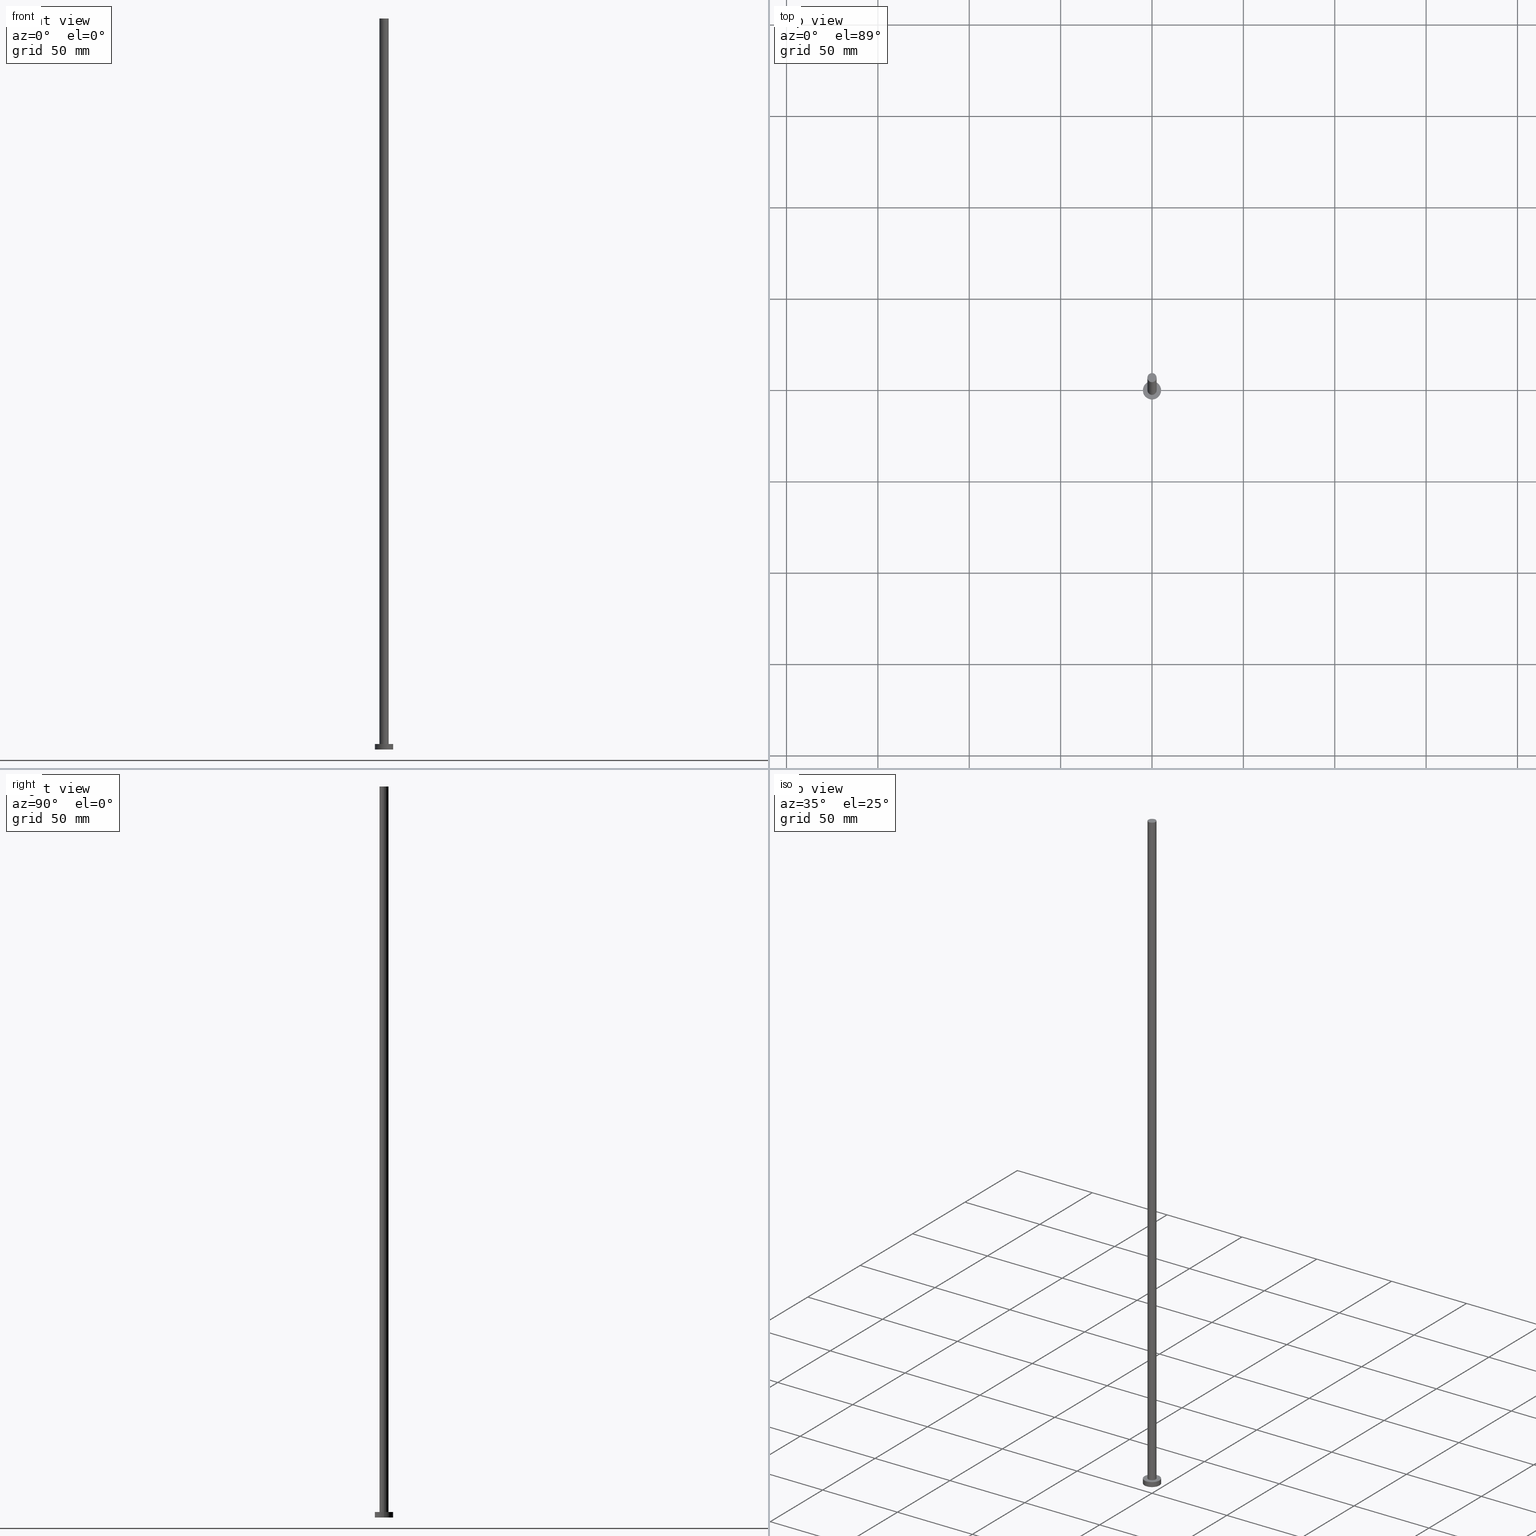
[diagram: canonical four-view strip — front | top / right | iso, engineering-drawing reading convention]
A machine part, canonical four-view strip (front | top / right | iso — engineering-drawing reading convention). The complete STEP part file that produces these views, byte-faithful:
ISO-10303-21;
HEADER;
FILE_DESCRIPTION (( 'STEP AP203' ),
    '1' );
FILE_NAME ('a078.STEP',
    '2023-02-12T11:50:49',
    ( '' ),
    ( '' ),
    'SwSTEP 2.0',
    'SolidWorks 2019',
    '' );
FILE_SCHEMA (( 'CONFIG_CONTROL_DESIGN' ));
ENDSEC;

DATA;
#1 = CARTESIAN_POINT ( 'NONE',  ( 0.000000000000000000, 0.000000000000000000, 0.000000000000000000 ) ) ;
#2 = CARTESIAN_POINT ( 'NONE',  ( 5.000000000000000000, 6.123233995736766282E-16, 3.000000000000000000 ) ) ;
#3 = PLANE ( 'NONE',  #47 ) ;
#4 = EDGE_CURVE ( 'NONE', #247, #210, #122, .T. ) ;
#5 = FACE_BOUND ( 'NONE', #58, .T. ) ;
#6 = CIRCLE ( 'NONE', #139, 2.500000000000000000 ) ;
#7 = DESIGN_CONTEXT ( 'detailed design', #200, 'design' ) ;
#8 = DIRECTION ( 'NONE',  ( 1.000000000000000000, 0.000000000000000000, 0.000000000000000000 ) ) ;
#9 = DATE_AND_TIME ( #54, #92 ) ;
#10 = DIRECTION ( 'NONE',  ( 0.000000000000000000, 0.000000000000000000, 1.000000000000000000 ) ) ;
#11 = APPROVAL_ROLE ( '' ) ;
#12 = CIRCLE ( 'NONE', #32, 2.500000000000000000 ) ;
#13 = CARTESIAN_POINT ( 'NONE',  ( 2.500000000000000000, 3.061616997868383141E-16, 400.0000000000000000 ) ) ;
#14 = PERSON_AND_ORGANIZATION ( #252, #175 ) ;
#15 = ORIENTED_EDGE ( 'NONE', *, *, #145, .F. ) ;
#16 = EDGE_CURVE ( 'NONE', #198, #154, #202, .T. ) ;
#17 = DIRECTION ( 'NONE',  ( -0.000000000000000000, -0.000000000000000000, -1.000000000000000000 ) ) ;
#18 = LOCAL_TIME ( 12, 50, 49.00000000000000000, #79 ) ;
#19 = ORIENTED_EDGE ( 'NONE', *, *, #16, .T. ) ;
#20 = EDGE_CURVE ( 'NONE', #61, #116, #118, .T. ) ;
#21 = ORIENTED_EDGE ( 'NONE', *, *, #204, .T. ) ;
#22 = AXIS2_PLACEMENT_3D ( 'NONE', #113, #17, #76 ) ;
#23 = CIRCLE ( 'NONE', #134, 5.000000000000000000 ) ;
#24 = ORIENTED_EDGE ( 'NONE', *, *, #145, .T. ) ;
#25 = FACE_OUTER_BOUND ( 'NONE', #111, .T. ) ;
#26 = APPLICATION_CONTEXT ( 'configuration controlled 3d designs of mechanical parts and assemblies' ) ;
#27 = PLANE ( 'NONE',  #117 ) ;
#28 = AXIS2_PLACEMENT_3D ( 'NONE', #131, #87, #105 ) ;
#29 = FACE_OUTER_BOUND ( 'NONE', #78, .T. ) ;
#30 = DIRECTION ( 'NONE',  ( 1.000000000000000000, 0.000000000000000000, -0.000000000000000000 ) ) ;
#31 = CALENDAR_DATE ( 2023, 12, 2 ) ;
#32 = AXIS2_PLACEMENT_3D ( 'NONE', #98, #138, #8 ) ;
#33 = CC_DESIGN_PERSON_AND_ORGANIZATION_ASSIGNMENT ( #248, #148, ( #218 ) ) ;
#34 = ORIENTED_EDGE ( 'NONE', *, *, #71, .F. ) ;
#35 = ORIENTED_EDGE ( 'NONE', *, *, #171, .F. ) ;
#36 = DIRECTION ( 'NONE',  ( -1.000000000000000000, 0.000000000000000000, 0.000000000000000000 ) ) ;
#37 = APPROVAL_ROLE ( '' ) ;
#38 = VECTOR ( 'NONE', #69, 1000.000000000000000 ) ;
#39 = ORIENTED_EDGE ( 'NONE', *, *, #42, .F. ) ;
#40 = CALENDAR_DATE ( 2023, 12, 2 ) ;
#41 = PRODUCT ( 'a078', 'a078', '', ( #144 ) ) ;
#42 = EDGE_CURVE ( 'NONE', #150, #116, #245, .T. ) ;
#43 = DIRECTION ( 'NONE',  ( 0.000000000000000000, 0.000000000000000000, 1.000000000000000000 ) ) ;
#44 = DIRECTION ( 'NONE',  ( -0.000000000000000000, -0.000000000000000000, -1.000000000000000000 ) ) ;
#45 = CARTESIAN_POINT ( 'NONE',  ( -2.500000000000000000, 0.000000000000000000, 400.0000000000000000 ) ) ;
#46 = CARTESIAN_POINT ( 'NONE',  ( 5.000000000000000000, 6.123233995736766282E-16, 0.000000000000000000 ) ) ;
#47 = AXIS2_PLACEMENT_3D ( 'NONE', #1, #158, #174 ) ;
#48 = CARTESIAN_POINT ( 'NONE',  ( 0.000000000000000000, 0.000000000000000000, 3.000000000000000000 ) ) ;
#49 = DATE_AND_TIME ( #232, #253 ) ;
#50 = CIRCLE ( 'NONE', #173, 5.000000000000000000 ) ;
#51 = CC_DESIGN_PERSON_AND_ORGANIZATION_ASSIGNMENT ( #246, #74, ( #96 ) ) ;
#52 = ORIENTED_EDGE ( 'NONE', *, *, #120, .T. ) ;
#53 = DIRECTION ( 'NONE',  ( 0.000000000000000000, 0.000000000000000000, 1.000000000000000000 ) ) ;
#54 = CALENDAR_DATE ( 2023, 12, 2 ) ;
#55 = EDGE_CURVE ( 'NONE', #247, #198, #50, .T. ) ;
#56 = FACE_OUTER_BOUND ( 'NONE', #249, .T. ) ;
#57 = PERSON_AND_ORGANIZATION_ROLE ( 'design_owner' ) ;
#58 = EDGE_LOOP ( 'NONE', ( #254, #35 ) ) ;
#59 = FACE_OUTER_BOUND ( 'NONE', #178, .T. ) ;
#60 = PRODUCT_DEFINITION_SHAPE ( 'NONE', 'NONE',  #220 ) ;
#61 = VERTEX_POINT ( 'NONE', #231 ) ;
#62 = LOCAL_TIME ( 12, 50, 49.00000000000000000, #234 ) ;
#63 = CARTESIAN_POINT ( 'NONE',  ( -5.000000000000000000, 0.000000000000000000, 3.000000000000000000 ) ) ;
#64 = DIRECTION ( 'NONE',  ( 1.000000000000000000, 0.000000000000000000, 0.000000000000000000 ) ) ;
#65 = CARTESIAN_POINT ( 'NONE',  ( 0.000000000000000000, 0.000000000000000000, 3.000000000000000000 ) ) ;
#66 = ADVANCED_FACE ( 'NONE', ( #56 ), #180, .T. ) ;
#67 = AXIS2_PLACEMENT_3D ( 'NONE', #143, #53, #207 ) ;
#68 = CARTESIAN_POINT ( 'NONE',  ( 0.000000000000000000, 0.000000000000000000, 0.000000000000000000 ) ) ;
#69 = DIRECTION ( 'NONE',  ( -0.000000000000000000, -0.000000000000000000, -1.000000000000000000 ) ) ;
#70 = DATE_AND_TIME ( #31, #104 ) ;
#71 = EDGE_CURVE ( 'NONE', #210, #154, #72, .T. ) ;
#72 = CIRCLE ( 'NONE', #141, 5.000000000000000000 ) ;
#73 = PRODUCT_RELATED_PRODUCT_CATEGORY ( 'detail', '', ( #41 ) ) ;
#74 = PERSON_AND_ORGANIZATION_ROLE ( 'creator' ) ;
#75 = DIRECTION ( 'NONE',  ( 0.000000000000000000, 0.000000000000000000, 1.000000000000000000 ) ) ;
#76 = DIRECTION ( 'NONE',  ( -1.000000000000000000, 0.000000000000000000, 0.000000000000000000 ) ) ;
#77 = CC_DESIGN_DATE_AND_TIME_ASSIGNMENT ( #70, #129, ( #220 ) ) ;
#78 = EDGE_LOOP ( 'NONE', ( #189, #34 ) ) ;
#79 = COORDINATED_UNIVERSAL_TIME_OFFSET ( 1, 0, .AHEAD. ) ;
#80 = ADVANCED_BREP_SHAPE_REPRESENTATION ( 'a078', ( #101, #181 ), #244 ) ;
#81 = CC_DESIGN_SECURITY_CLASSIFICATION ( #218, ( #96 ) ) ;
#82 = APPROVAL ( #190, 'NEUR�EN�' ) ;
#83 = LINE ( 'NONE', #45, #147 ) ;
#84 = CARTESIAN_POINT ( 'NONE',  ( 0.000000000000000000, 0.000000000000000000, 400.0000000000000000 ) ) ;
#85 = DIRECTION ( 'NONE',  ( 0.000000000000000000, 0.000000000000000000, 1.000000000000000000 ) ) ;
#86 = CIRCLE ( 'NONE', #194, 5.000000000000000000 ) ;
#87 = DIRECTION ( 'NONE',  ( -0.000000000000000000, -0.000000000000000000, -1.000000000000000000 ) ) ;
#88 = ORIENTED_EDGE ( 'NONE', *, *, #4, .F. ) ;
#89 = CC_DESIGN_PERSON_AND_ORGANIZATION_ASSIGNMENT ( #125, #57, ( #41 ) ) ;
#90 = PERSON_AND_ORGANIZATION ( #252, #175 ) ;
#91 = ORIENTED_EDGE ( 'NONE', *, *, #71, .T. ) ;
#92 = LOCAL_TIME ( 12, 50, 49.00000000000000000, #243 ) ;
#93 = EDGE_LOOP ( 'NONE', ( #24, #168 ) ) ;
#94 = ADVANCED_FACE ( 'NONE', ( #59 ), #135, .T. ) ;
#95 = AXIS2_PLACEMENT_3D ( 'NONE', #149, #235, #64 ) ;
#96 = PRODUCT_DEFINITION_FORMATION_WITH_SPECIFIED_SOURCE ( 'LIBOVOLN�', '', #41, .NOT_KNOWN. ) ;
#97 = DIRECTION ( 'NONE',  ( -0.000000000000000000, -0.000000000000000000, -1.000000000000000000 ) ) ;
#98 = CARTESIAN_POINT ( 'NONE',  ( 0.000000000000000000, 0.000000000000000000, 3.000000000000000000 ) ) ;
#99 = AXIS2_PLACEMENT_3D ( 'NONE', #65, #179, #119 ) ;
#100 =( NAMED_UNIT ( * ) SI_UNIT ( $, .STERADIAN. ) SOLID_ANGLE_UNIT ( ) );
#101 = MANIFOLD_SOLID_BREP ( 'P�idat vysunut�m3', #157 ) ;
#102 = APPLICATION_PROTOCOL_DEFINITION ( 'international standard', 'config_control_design', 1994, #26 ) ;
#103 = ADVANCED_FACE ( 'NONE', ( #192 ), #250, .T. ) ;
#104 = LOCAL_TIME ( 12, 50, 49.00000000000000000, #185 ) ;
#105 = DIRECTION ( 'NONE',  ( -1.000000000000000000, 0.000000000000000000, 0.000000000000000000 ) ) ;
#106 = APPROVAL_DATE_TIME ( #9, #82 ) ;
#107 = ORIENTED_EDGE ( 'NONE', *, *, #151, .T. ) ;
#108 = EDGE_CURVE ( 'NONE', #191, #150, #161, .T. ) ;
#109 = CARTESIAN_POINT ( 'NONE',  ( 0.000000000000000000, 0.000000000000000000, 0.000000000000000000 ) ) ;
#110 = ORIENTED_EDGE ( 'NONE', *, *, #108, .T. ) ;
#111 = EDGE_LOOP ( 'NONE', ( #236, #126, #91, #197 ) ) ;
#112 = ADVANCED_FACE ( 'NONE', ( #201 ), #27, .T. ) ;
#113 = CARTESIAN_POINT ( 'NONE',  ( 0.000000000000000000, 0.000000000000000000, 3.000000000000000000 ) ) ;
#114 = APPROVAL ( #251, 'NEUR�EN�' ) ;
#115 = SHAPE_DEFINITION_REPRESENTATION ( #60, #80 ) ;
#116 = VERTEX_POINT ( 'NONE', #155 ) ;
#117 = AXIS2_PLACEMENT_3D ( 'NONE', #84, #140, #30 ) ;
#118 = CIRCLE ( 'NONE', #67, 2.500000000000000000 ) ;
#119 = DIRECTION ( 'NONE',  ( 1.000000000000000000, 0.000000000000000000, -0.000000000000000000 ) ) ;
#120 = EDGE_CURVE ( 'NONE', #150, #191, #6, .T. ) ;
#121 = CARTESIAN_POINT ( 'NONE',  ( 0.000000000000000000, 0.000000000000000000, 3.000000000000000000 ) ) ;
#122 = LINE ( 'NONE', #226, #187 ) ;
#123 = CARTESIAN_POINT ( 'NONE',  ( 0.000000000000000000, 0.000000000000000000, 3.000000000000000000 ) ) ;
#124 = DIRECTION ( 'NONE',  ( 1.000000000000000000, 0.000000000000000000, 0.000000000000000000 ) ) ;
#125 = PERSON_AND_ORGANIZATION ( #252, #175 ) ;
#126 = ORIENTED_EDGE ( 'NONE', *, *, #4, .T. ) ;
#127 = APPROVAL_PERSON_ORGANIZATION ( #219, #114, #37 ) ;
#128 = DIRECTION ( 'NONE',  ( 1.000000000000000000, 0.000000000000000000, 0.000000000000000000 ) ) ;
#129 = DATE_TIME_ROLE ( 'creation_date' ) ;
#130 = VECTOR ( 'NONE', #186, 1000.000000000000000 ) ;
#131 = CARTESIAN_POINT ( 'NONE',  ( 0.000000000000000000, 0.000000000000000000, 400.0000000000000000 ) ) ;
#132 = CALENDAR_DATE ( 2023, 12, 2 ) ;
#133 = EDGE_LOOP ( 'NONE', ( #110, #52 ) ) ;
#134 = AXIS2_PLACEMENT_3D ( 'NONE', #68, #43, #203 ) ;
#135 = CYLINDRICAL_SURFACE ( 'NONE', #212, 2.500000000000000000 ) ;
#136 = DATE_AND_TIME ( #132, #62 ) ;
#137 = CC_DESIGN_APPROVAL ( #114, ( #218 ) ) ;
#138 = DIRECTION ( 'NONE',  ( 0.000000000000000000, 0.000000000000000000, 1.000000000000000000 ) ) ;
#139 = AXIS2_PLACEMENT_3D ( 'NONE', #223, #162, #177 ) ;
#140 = DIRECTION ( 'NONE',  ( 0.000000000000000000, 0.000000000000000000, 1.000000000000000000 ) ) ;
#141 = AXIS2_PLACEMENT_3D ( 'NONE', #184, #10, #128 ) ;
#142 = FACE_OUTER_BOUND ( 'NONE', #93, .T. ) ;
#143 = CARTESIAN_POINT ( 'NONE',  ( 0.000000000000000000, 0.000000000000000000, 3.000000000000000000 ) ) ;
#144 = MECHANICAL_CONTEXT ( 'NONE', #26, 'mechanical' ) ;
#145 = EDGE_CURVE ( 'NONE', #198, #247, #86, .T. ) ;
#146 = PERSON_AND_ORGANIZATION_ROLE ( 'creator' ) ;
#147 = VECTOR ( 'NONE', #227, 1000.000000000000000 ) ;
#148 = PERSON_AND_ORGANIZATION_ROLE ( 'classification_officer' ) ;
#149 = CARTESIAN_POINT ( 'NONE',  ( 0.000000000000000000, 0.000000000000000000, 400.0000000000000000 ) ) ;
#150 = VERTEX_POINT ( 'NONE', #237 ) ;
#151 = EDGE_CURVE ( 'NONE', #154, #210, #23, .T. ) ;
#152 = ORIENTED_EDGE ( 'NONE', *, *, #120, .F. ) ;
#153 = CC_DESIGN_APPROVAL ( #196, ( #96 ) ) ;
#154 = VERTEX_POINT ( 'NONE', #238 ) ;
#155 = CARTESIAN_POINT ( 'NONE',  ( 2.500000000000000000, 3.061616997868383141E-16, 3.000000000000000000 ) ) ;
#156 = ADVANCED_FACE ( 'NONE', ( #5, #142 ), #199, .T. ) ;
#157 = CLOSED_SHELL ( 'NONE', ( #66, #224, #103, #156, #229, #94, #112 ) ) ;
#158 = DIRECTION ( 'NONE',  ( 0.000000000000000000, 0.000000000000000000, 1.000000000000000000 ) ) ;
#159 =( LENGTH_UNIT ( ) NAMED_UNIT ( * ) SI_UNIT ( .MILLI., .METRE. ) );
#160 = CC_DESIGN_DATE_AND_TIME_ASSIGNMENT ( #136, #255, ( #218 ) ) ;
#161 = CIRCLE ( 'NONE', #95, 2.500000000000000000 ) ;
#162 = DIRECTION ( 'NONE',  ( 0.000000000000000000, 0.000000000000000000, 1.000000000000000000 ) ) ;
#163 = UNCERTAINTY_MEASURE_WITH_UNIT (LENGTH_MEASURE( 1.000000000000000082E-05 ), #159, 'distance_accuracy_value', 'NONE');
#164 = DIRECTION ( 'NONE',  ( 1.000000000000000000, 0.000000000000000000, 0.000000000000000000 ) ) ;
#165 = APPROVAL_DATE_TIME ( #49, #196 ) ;
#166 = PERSON_AND_ORGANIZATION_ROLE ( 'design_supplier' ) ;
#167 = DIRECTION ( 'NONE',  ( -0.000000000000000000, -0.000000000000000000, -1.000000000000000000 ) ) ;
#168 = ORIENTED_EDGE ( 'NONE', *, *, #55, .T. ) ;
#169 = ORIENTED_EDGE ( 'NONE', *, *, #108, .F. ) ;
#170 = APPROVAL_DATE_TIME ( #195, #114 ) ;
#171 = EDGE_CURVE ( 'NONE', #116, #61, #12, .T. ) ;
#172 = DIRECTION ( 'NONE',  ( -1.000000000000000000, 0.000000000000000000, 0.000000000000000000 ) ) ;
#173 = AXIS2_PLACEMENT_3D ( 'NONE', #48, #75, #124 ) ;
#174 = DIRECTION ( 'NONE',  ( 1.000000000000000000, 0.000000000000000000, -0.000000000000000000 ) ) ;
#175 = ORGANIZATION ( 'NEUR�EN�', 'NEUR�EN�', '' ) ;
#176 = CARTESIAN_POINT ( 'NONE',  ( -5.000000000000000000, 0.000000000000000000, 3.000000000000000000 ) ) ;
#177 = DIRECTION ( 'NONE',  ( 1.000000000000000000, 0.000000000000000000, 0.000000000000000000 ) ) ;
#178 = EDGE_LOOP ( 'NONE', ( #39, #169, #21, #230 ) ) ;
#179 = DIRECTION ( 'NONE',  ( 0.000000000000000000, 0.000000000000000000, 1.000000000000000000 ) ) ;
#180 = CYLINDRICAL_SURFACE ( 'NONE', #28, 2.500000000000000000 ) ;
#181 = AXIS2_PLACEMENT_3D ( 'NONE', #109, #85, #164 ) ;
#182 = CC_DESIGN_PERSON_AND_ORGANIZATION_ASSIGNMENT ( #90, #166, ( #96 ) ) ;
#183 = PERSON_AND_ORGANIZATION ( #252, #175 ) ;
#184 = CARTESIAN_POINT ( 'NONE',  ( 0.000000000000000000, 0.000000000000000000, 0.000000000000000000 ) ) ;
#185 = COORDINATED_UNIVERSAL_TIME_OFFSET ( 1, 0, .AHEAD. ) ;
#186 = DIRECTION ( 'NONE',  ( -0.000000000000000000, -0.000000000000000000, -1.000000000000000000 ) ) ;
#187 = VECTOR ( 'NONE', #44, 1000.000000000000000 ) ;
#188 = APPROVAL_ROLE ( '' ) ;
#189 = ORIENTED_EDGE ( 'NONE', *, *, #151, .F. ) ;
#190 = APPROVAL_STATUS ( 'not_yet_approved' ) ;
#191 = VERTEX_POINT ( 'NONE', #228 ) ;
#192 = FACE_OUTER_BOUND ( 'NONE', #216, .T. ) ;
#193 = ORIENTED_EDGE ( 'NONE', *, *, #171, .T. ) ;
#194 = AXIS2_PLACEMENT_3D ( 'NONE', #123, #241, #205 ) ;
#195 = DATE_AND_TIME ( #40, #18 ) ;
#196 = APPROVAL ( #211, 'NEUR�EN�' ) ;
#197 = ORIENTED_EDGE ( 'NONE', *, *, #16, .F. ) ;
#198 = VERTEX_POINT ( 'NONE', #63 ) ;
#199 = PLANE ( 'NONE',  #99 ) ;
#200 = APPLICATION_CONTEXT ( 'configuration controlled 3d designs of mechanical parts and assemblies' ) ;
#201 = FACE_OUTER_BOUND ( 'NONE', #133, .T. ) ;
#202 = LINE ( 'NONE', #176, #38 ) ;
#203 = DIRECTION ( 'NONE',  ( 1.000000000000000000, 0.000000000000000000, 0.000000000000000000 ) ) ;
#204 = EDGE_CURVE ( 'NONE', #191, #61, #83, .T. ) ;
#205 = DIRECTION ( 'NONE',  ( 1.000000000000000000, 0.000000000000000000, 0.000000000000000000 ) ) ;
#206 = APPLICATION_PROTOCOL_DEFINITION ( 'international standard', 'config_control_design', 1994, #200 ) ;
#207 = DIRECTION ( 'NONE',  ( 1.000000000000000000, 0.000000000000000000, 0.000000000000000000 ) ) ;
#208 = AXIS2_PLACEMENT_3D ( 'NONE', #121, #97, #172 ) ;
#209 = PERSON_AND_ORGANIZATION ( #252, #175 ) ;
#210 = VERTEX_POINT ( 'NONE', #46 ) ;
#211 = APPROVAL_STATUS ( 'not_yet_approved' ) ;
#212 = AXIS2_PLACEMENT_3D ( 'NONE', #217, #167, #36 ) ;
#213 = COORDINATED_UNIVERSAL_TIME_OFFSET ( 1, 0, .AHEAD. ) ;
#214 = ORIENTED_EDGE ( 'NONE', *, *, #42, .T. ) ;
#215 = SECURITY_CLASSIFICATION_LEVEL ( 'unclassified' ) ;
#216 = EDGE_LOOP ( 'NONE', ( #88, #15, #19, #107 ) ) ;
#217 = CARTESIAN_POINT ( 'NONE',  ( 0.000000000000000000, 0.000000000000000000, 400.0000000000000000 ) ) ;
#218 = SECURITY_CLASSIFICATION ( '', '', #215 ) ;
#219 = PERSON_AND_ORGANIZATION ( #252, #175 ) ;
#220 = PRODUCT_DEFINITION ( 'NEZN�M�', '', #96, #7 ) ;
#221 = CYLINDRICAL_SURFACE ( 'NONE', #208, 5.000000000000000000 ) ;
#222 = APPROVAL_PERSON_ORGANIZATION ( #209, #82, #11 ) ;
#223 = CARTESIAN_POINT ( 'NONE',  ( 0.000000000000000000, 0.000000000000000000, 400.0000000000000000 ) ) ;
#224 = ADVANCED_FACE ( 'NONE', ( #25 ), #221, .T. ) ;
#225 =( NAMED_UNIT ( * ) PLANE_ANGLE_UNIT ( ) SI_UNIT ( $, .RADIAN. ) );
#226 = CARTESIAN_POINT ( 'NONE',  ( 5.000000000000000000, 6.123233995736766282E-16, 3.000000000000000000 ) ) ;
#227 = DIRECTION ( 'NONE',  ( -0.000000000000000000, -0.000000000000000000, -1.000000000000000000 ) ) ;
#228 = CARTESIAN_POINT ( 'NONE',  ( -2.500000000000000000, 0.000000000000000000, 400.0000000000000000 ) ) ;
#229 = ADVANCED_FACE ( 'NONE', ( #29 ), #3, .F. ) ;
#230 = ORIENTED_EDGE ( 'NONE', *, *, #20, .T. ) ;
#231 = CARTESIAN_POINT ( 'NONE',  ( -2.500000000000000000, 0.000000000000000000, 3.000000000000000000 ) ) ;
#232 = CALENDAR_DATE ( 2023, 12, 2 ) ;
#233 = ORIENTED_EDGE ( 'NONE', *, *, #204, .F. ) ;
#234 = COORDINATED_UNIVERSAL_TIME_OFFSET ( 1, 0, .AHEAD. ) ;
#235 = DIRECTION ( 'NONE',  ( 0.000000000000000000, 0.000000000000000000, 1.000000000000000000 ) ) ;
#236 = ORIENTED_EDGE ( 'NONE', *, *, #55, .F. ) ;
#237 = CARTESIAN_POINT ( 'NONE',  ( 2.500000000000000000, 3.061616997868383141E-16, 400.0000000000000000 ) ) ;
#238 = CARTESIAN_POINT ( 'NONE',  ( -5.000000000000000000, 0.000000000000000000, 0.000000000000000000 ) ) ;
#239 = APPROVAL_PERSON_ORGANIZATION ( #14, #196, #188 ) ;
#240 = CC_DESIGN_PERSON_AND_ORGANIZATION_ASSIGNMENT ( #183, #146, ( #220 ) ) ;
#241 = DIRECTION ( 'NONE',  ( 0.000000000000000000, 0.000000000000000000, 1.000000000000000000 ) ) ;
#242 = CC_DESIGN_APPROVAL ( #82, ( #220 ) ) ;
#243 = COORDINATED_UNIVERSAL_TIME_OFFSET ( 1, 0, .AHEAD. ) ;
#244 =( GEOMETRIC_REPRESENTATION_CONTEXT ( 3 ) GLOBAL_UNCERTAINTY_ASSIGNED_CONTEXT ( ( #163 ) ) GLOBAL_UNIT_ASSIGNED_CONTEXT ( ( #159, #225, #100 ) ) REPRESENTATION_CONTEXT ( 'NONE', 'WORKASPACE' ) );
#245 = LINE ( 'NONE', #13, #130 ) ;
#246 = PERSON_AND_ORGANIZATION ( #252, #175 ) ;
#247 = VERTEX_POINT ( 'NONE', #2 ) ;
#248 = PERSON_AND_ORGANIZATION ( #252, #175 ) ;
#249 = EDGE_LOOP ( 'NONE', ( #152, #214, #193, #233 ) ) ;
#250 = CYLINDRICAL_SURFACE ( 'NONE', #22, 5.000000000000000000 ) ;
#251 = APPROVAL_STATUS ( 'not_yet_approved' ) ;
#252 = PERSON ( 'NEUR�EN�', 'NEUR�EN�', 'NEUR�EN�', ('NEUR�EN�'), ('NEUR�EN�'), ('NEUR�EN�') ) ;
#253 = LOCAL_TIME ( 12, 50, 49.00000000000000000, #213 ) ;
#254 = ORIENTED_EDGE ( 'NONE', *, *, #20, .F. ) ;
#255 = DATE_TIME_ROLE ( 'classification_date' ) ;
ENDSEC;
END-ISO-10303-21;
